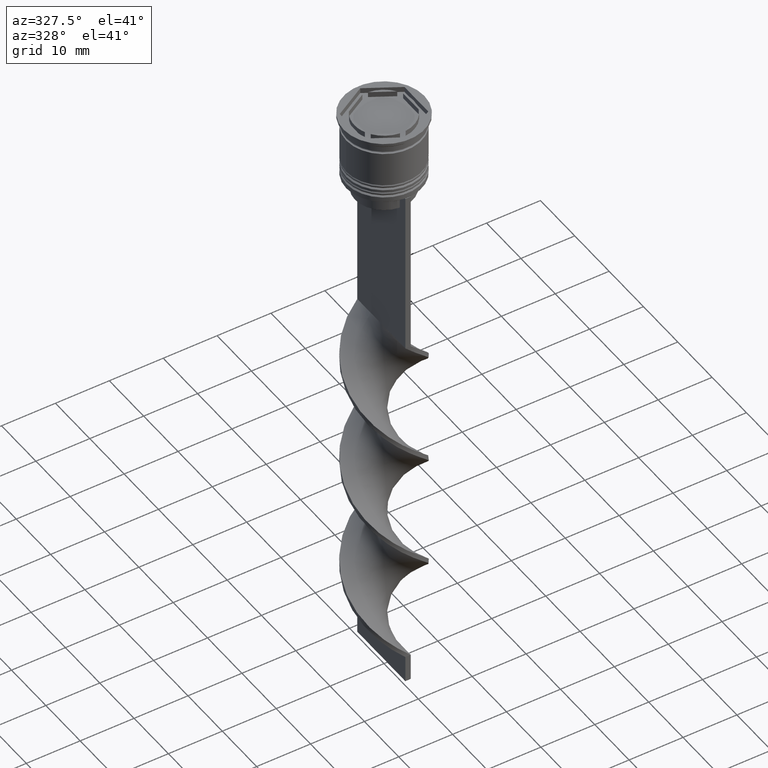
[diagram: clean part render]
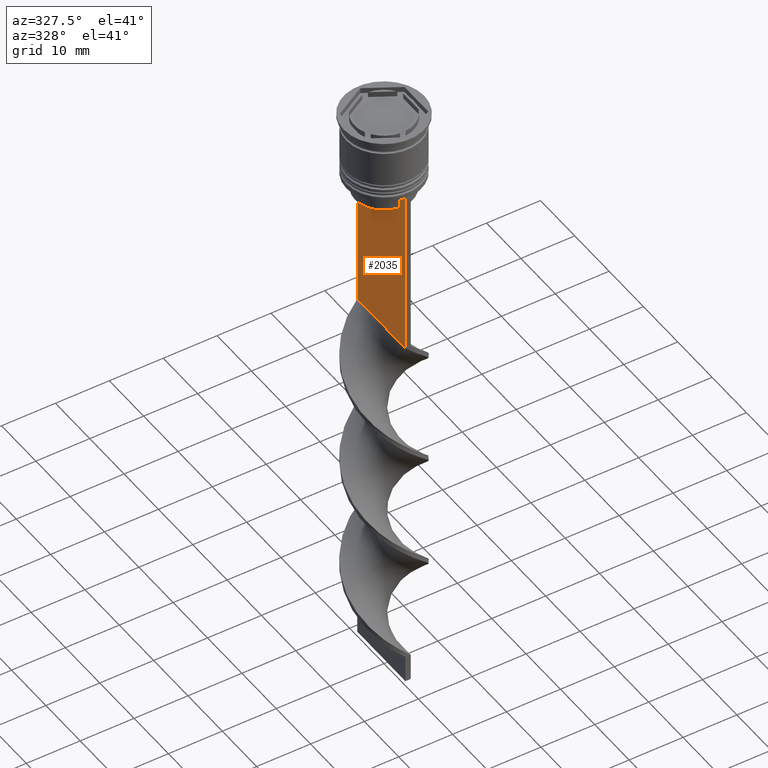
[diagram: same view with one face highlighted and labeled with its STEP entity id]
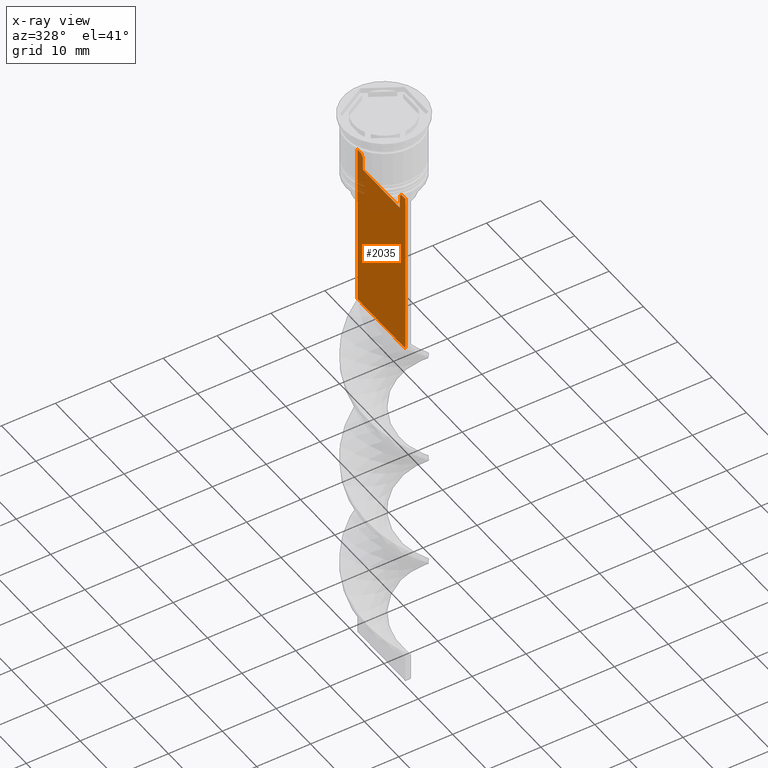
[diagram: x-ray of the same camera — body ghosted, the highlighted face saturated]
A machine part, auxiliary view. The second image highlights one B-rep face of the part: STEP entity #2035.
The next image is the same camera in x-ray: the body ghosted, the highlighted face saturated — about 4% of this face is hidden behind the body in this view.
In plain terms, the highlighted planar face has unit normal (-1, 0, 0).
Its self-contained STEP definition (entity closure, byte-faithful):
#41 = EDGE_CURVE ( 'NONE', #851, #2374, #1198, .T. ) ;
#92 = VERTEX_POINT ( 'NONE', #2651 ) ;
#121 = LINE ( 'NONE', #2012, #725 ) ;
#173 = PLANE ( 'NONE',  #3452 ) ;
#174 = EDGE_CURVE ( 'NONE', #992, #2421, #2308, .T. ) ;
#188 = FACE_OUTER_BOUND ( 'NONE', #767, .T. ) ;
#195 = ORIENTED_EDGE ( 'NONE', *, *, #1425, .F. ) ;
#233 = EDGE_CURVE ( 'NONE', #1317, #992, #3495, .T. ) ;
#270 = ORIENTED_EDGE ( 'NONE', *, *, #2229, .F. ) ;
#330 = ORIENTED_EDGE ( 'NONE', *, *, #41, .F. ) ;
#380 = VERTEX_POINT ( 'NONE', #3299 ) ;
#383 = CARTESIAN_POINT ( 'NONE',  ( -0.5000000000000000000, -5.376802023508029826, -15.50000000000000000 ) ) ;
#389 = ORIENTED_EDGE ( 'NONE', *, *, #2970, .F. ) ;
#401 = DIRECTION ( 'NONE',  ( 0.000000000000000000, -1.000000000000000000, 0.000000000000000000 ) ) ;
#407 = CARTESIAN_POINT ( 'NONE',  ( -0.5000000000000000000, 7.000000000000002665, 1.535668847618198329 ) ) ;
#426 = ORIENTED_EDGE ( 'NONE', *, *, #565, .F. ) ;
#483 = VERTEX_POINT ( 'NONE', #3111 ) ;
#485 = VECTOR ( 'NONE', #928, 1000.000000000000000 ) ;
#514 = DIRECTION ( 'NONE',  ( -1.000000000000000000, 0.000000000000000000, 0.000000000000000000 ) ) ;
#557 = CARTESIAN_POINT ( 'NONE',  ( -0.5000000000000000000, -6.999999999999997335, -43.50000000000000000 ) ) ;
#565 = EDGE_CURVE ( 'NONE', #2374, #380, #2280, .T. ) ;
#570 = ORIENTED_EDGE ( 'NONE', *, *, #3467, .F. ) ;
#577 = VECTOR ( 'NONE', #2629, 1000.000000000000000 ) ;
#631 = ORIENTED_EDGE ( 'NONE', *, *, #3592, .F. ) ;
#634 = CARTESIAN_POINT ( 'NONE',  ( -0.5000000000000000000, -5.376802023508029826, 0.000000000000000000 ) ) ;
#662 = VECTOR ( 'NONE', #3432, 1000.000000000000000 ) ;
#667 = CARTESIAN_POINT ( 'NONE',  ( -0.5000000000000000000, -6.999999999999997335, 1.535668847618198329 ) ) ;
#671 = ORIENTED_EDGE ( 'NONE', *, *, #2098, .F. ) ;
#715 = VECTOR ( 'NONE', #401, 1000.000000000000000 ) ;
#725 = VECTOR ( 'NONE', #1226, 1000.000000000000000 ) ;
#767 = EDGE_LOOP ( 'NONE', ( #631, #570, #270, #2711, #195, #3433, #1922, #389, #671, #426, #330, #2466 ) ) ;
#851 = VERTEX_POINT ( 'NONE', #2910 ) ;
#928 = DIRECTION ( 'NONE',  ( 0.000000000000000000, 0.000000000000000000, -1.000000000000000000 ) ) ;
#931 = VERTEX_POINT ( 'NONE', #1626 ) ;
#992 = VERTEX_POINT ( 'NONE', #1611 ) ;
#1100 = CARTESIAN_POINT ( 'NONE',  ( -0.5000000000000000000, -6.999999999999997335, -12.50000000000000000 ) ) ;
#1104 = LINE ( 'NONE', #2757, #2547 ) ;
#1198 = LINE ( 'NONE', #2918, #662 ) ;
#1221 = LINE ( 'NONE', #407, #1674 ) ;
#1226 = DIRECTION ( 'NONE',  ( 0.000000000000000000, -1.000000000000000000, 0.000000000000000000 ) ) ;
#1230 = B_SPLINE_CURVE_WITH_KNOTS ( 'NONE', 3,
 ( #2211, #2484, #3072, #2783 ),
 .UNSPECIFIED., .F., .F.,
 ( 4, 4 ),
 ( 0.02539176325380714666, 0.02610162431828674801 ),
 .UNSPECIFIED. ) ;
#1304 = CARTESIAN_POINT ( 'NONE',  ( -0.5000000000000000000, -6.881860213634102053, -12.50000000000000000 ) ) ;
#1317 = VERTEX_POINT ( 'NONE', #1304 ) ;
#1363 = LINE ( 'NONE', #1100, #1824 ) ;
#1425 = EDGE_CURVE ( 'NONE', #2421, #2700, #1936, .T. ) ;
#1513 = VERTEX_POINT ( 'NONE', #1641 ) ;
#1577 = CARTESIAN_POINT ( 'NONE',  ( -0.5000000000000000000, 5.878775382679629402, -12.50000000000000000 ) ) ;
#1601 = DIRECTION ( 'NONE',  ( 0.000000000000000000, 0.000000000000000000, 1.000000000000000000 ) ) ;
#1611 = CARTESIAN_POINT ( 'NONE',  ( -0.5000000000000000000, -6.999999999999997335, -12.50000000000000000 ) ) ;
#1621 = DIRECTION ( 'NONE',  ( 0.000000000000000000, 0.000000000000000000, -1.000000000000000000 ) ) ;
#1626 = CARTESIAN_POINT ( 'NONE',  ( -0.5000000000000000000, 7.000000000000002665, -12.50000000000000000 ) ) ;
#1641 = CARTESIAN_POINT ( 'NONE',  ( -0.5000000000000000000, 5.376802023508029826, -13.00000000000000178 ) ) ;
#1674 = VECTOR ( 'NONE', #1851, 1000.000000000000000 ) ;
#1824 = VECTOR ( 'NONE', #2768, 1000.000000000000000 ) ;
#1825 = VECTOR ( 'NONE', #2209, 1000.000000000000000 ) ;
#1851 = DIRECTION ( 'NONE',  ( 0.000000000000000000, 0.000000000000000000, -1.000000000000000000 ) ) ;
#1888 = CARTESIAN_POINT ( 'NONE',  ( -0.5000000000000000000, 5.878775382679629402, -12.50000000000000000 ) ) ;
#1922 = ORIENTED_EDGE ( 'NONE', *, *, #233, .F. ) ;
#1936 = LINE ( 'NONE', #557, #2800 ) ;
#2012 = CARTESIAN_POINT ( 'NONE',  ( -0.5000000000000000000, -6.999999999999997335, -12.50000000000000000 ) ) ;
#2035 = ADVANCED_FACE ( 'NONE', ( #188 ), #173, .T. ) ;
#2069 = LINE ( 'NONE', #2330, #577 ) ;
#2098 = EDGE_CURVE ( 'NONE', #380, #483, #1230, .T. ) ;
#2135 = CARTESIAN_POINT ( 'NONE',  ( -0.5000000000000000000, -6.999999999999997335, 1.535668847618198329 ) ) ;
#2209 = DIRECTION ( 'NONE',  ( -0.000000000000000000, -0.000000000000000000, 1.000000000000000000 ) ) ;
#2211 = CARTESIAN_POINT ( 'NONE',  ( -0.5000000000000000000, -5.376802023508029826, -13.00000000000000178 ) ) ;
#2229 = EDGE_CURVE ( 'NONE', #931, #92, #1363, .T. ) ;
#2280 = LINE ( 'NONE', #634, #1825 ) ;
#2308 = LINE ( 'NONE', #667, #485 ) ;
#2330 = CARTESIAN_POINT ( 'NONE',  ( -0.5000000000000000000, -6.999999999999997335, -12.50000000000000000 ) ) ;
#2356 = B_SPLINE_CURVE_WITH_KNOTS ( 'NONE', 3,
 ( #1888, #3538, #2772, #2489 ),
 .UNSPECIFIED., .F., .F.,
 ( 4, 4 ),
 ( 0.01003009312103698807, 0.01073859663834952557 ),
 .UNSPECIFIED. ) ;
#2374 = VERTEX_POINT ( 'NONE', #383 ) ;
#2421 = VERTEX_POINT ( 'NONE', #2620 ) ;
#2466 = ORIENTED_EDGE ( 'NONE', *, *, #3577, .F. ) ;
#2484 = CARTESIAN_POINT ( 'NONE',  ( -0.5000000000000000000, -5.544156999454441959, -12.83336396790503642 ) ) ;
#2489 = CARTESIAN_POINT ( 'NONE',  ( -0.5000000000000000000, 5.376802023508029826, -13.00000000000000178 ) ) ;
#2547 = VECTOR ( 'NONE', #1621, 1000.000000000000000 ) ;
#2599 = VERTEX_POINT ( 'NONE', #1577 ) ;
#2620 = CARTESIAN_POINT ( 'NONE',  ( -0.5000000000000000000, -6.999999999999997335, -43.50000000000000000 ) ) ;
#2629 = DIRECTION ( 'NONE',  ( 0.000000000000000000, -1.000000000000000000, 0.000000000000000000 ) ) ;
#2651 = CARTESIAN_POINT ( 'NONE',  ( -0.5000000000000000000, 6.881860213634102053, -12.50000000000000000 ) ) ;
#2700 = VERTEX_POINT ( 'NONE', #3345 ) ;
#2711 = ORIENTED_EDGE ( 'NONE', *, *, #3466, .T. ) ;
#2757 = CARTESIAN_POINT ( 'NONE',  ( -0.5000000000000000000, 5.376802023508029826, 0.000000000000000000 ) ) ;
#2768 = DIRECTION ( 'NONE',  ( 0.000000000000000000, -1.000000000000000000, 0.000000000000000000 ) ) ;
#2772 = CARTESIAN_POINT ( 'NONE',  ( -0.5000000000000000000, 5.544156989057553275, -12.83336397825725861 ) ) ;
#2783 = CARTESIAN_POINT ( 'NONE',  ( -0.5000000000000000000, -5.878775382679629402, -12.50000000000000000 ) ) ;
#2800 = VECTOR ( 'NONE', #3371, 1000.000000000000000 ) ;
#2910 = CARTESIAN_POINT ( 'NONE',  ( -0.5000000000000000000, 5.376802023508029826, -15.50000000000000000 ) ) ;
#2918 = CARTESIAN_POINT ( 'NONE',  ( -0.5000000000000000000, 5.400000000000003908, -15.50000000000000000 ) ) ;
#2970 = EDGE_CURVE ( 'NONE', #483, #1317, #121, .T. ) ;
#3072 = CARTESIAN_POINT ( 'NONE',  ( -0.5000000000000000000, -5.711478856069293286, -12.66669469529570335 ) ) ;
#3111 = CARTESIAN_POINT ( 'NONE',  ( -0.5000000000000000000, -5.878775382679629402, -12.50000000000000000 ) ) ;
#3154 = CARTESIAN_POINT ( 'NONE',  ( -0.5000000000000000000, -6.999999999999997335, -12.50000000000000000 ) ) ;
#3299 = CARTESIAN_POINT ( 'NONE',  ( -0.5000000000000000000, -5.376802023508029826, -13.00000000000000178 ) ) ;
#3345 = CARTESIAN_POINT ( 'NONE',  ( -0.5000000000000000000, 7.000000000000002665, -43.50000000000000000 ) ) ;
#3371 = DIRECTION ( 'NONE',  ( 0.000000000000000000, 1.000000000000000000, 0.000000000000000000 ) ) ;
#3432 = DIRECTION ( 'NONE',  ( 0.000000000000000000, -1.000000000000000000, 0.000000000000000000 ) ) ;
#3433 = ORIENTED_EDGE ( 'NONE', *, *, #174, .F. ) ;
#3452 = AXIS2_PLACEMENT_3D ( 'NONE', #2135, #514, #1601 ) ;
#3466 = EDGE_CURVE ( 'NONE', #931, #2700, #1221, .T. ) ;
#3467 = EDGE_CURVE ( 'NONE', #92, #2599, #2069, .T. ) ;
#3495 = LINE ( 'NONE', #3154, #715 ) ;
#3538 = CARTESIAN_POINT ( 'NONE',  ( -0.5000000000000000000, 5.711478846560141598, -12.66669470477064685 ) ) ;
#3577 = EDGE_CURVE ( 'NONE', #1513, #851, #1104, .T. ) ;
#3592 = EDGE_CURVE ( 'NONE', #2599, #1513, #2356, .T. ) ;